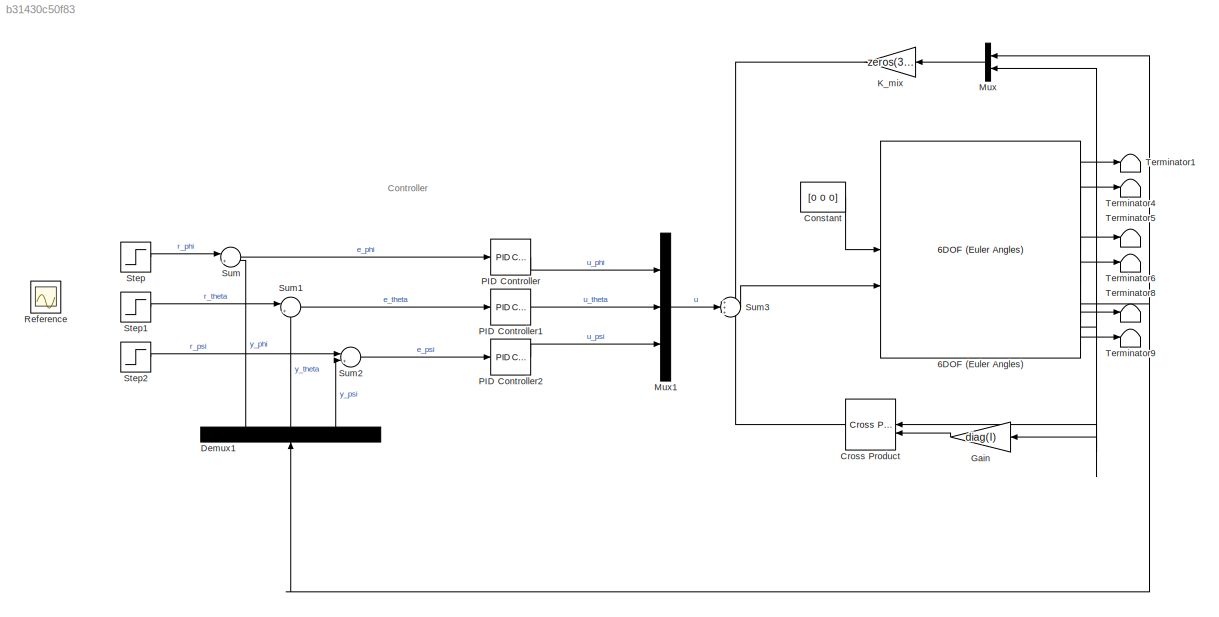
MODEL slx_b31430c50f83
KIND model
CONFIG AbsTol = auto
CONFIG EnableMultiTasking = off
CONFIG FixedStep = auto
CONFIG MaxStep = auto
CONFIG MinStep = auto
CONFIG RelTol = 1e-3
CONFIG SampleTimeConstraint = Unconstrained
CONFIG SolverName = ode45
CONFIG StartTime = 0.0
CONFIG StopTime = 10.0
BLOCK [Reference] 6DOF (Euler Angles)  REF=shared6dof/6DOF (Euler Angles)
  LibrarySourceBlock = aerolib6dof2/6DOF (Euler Angles)
  SourceBlock = shared6dof/6DOF (Euler Angles)
  SourceType = 6DOF EoM (Body Axis)
BLOCK [Constant] Constant
  Value = [0 0 0]
BLOCK [Reference] Cross Product  REF=matrix_library/Cross Product
  LibrarySourceBlock = simulink/Matrix\nOperations/Cross Product
  SourceBlock = matrix_library/Cross Product
  SourceType = CrossProduct
BLOCK [Demux] Demux1
  NameLocation = right
  Outputs = 3
BLOCK [Gain] Gain
  Gain = diag(I)
BLOCK [Gain] K_mix
  Gain = zeros(3,6)
  Multiplication = Matrix(K*u)
BLOCK [Mux] Mux
  DisplayOption = bar
  Inputs = 2
BLOCK [Mux] Mux1
  DisplayOption = bar
  Inputs = 3
BLOCK [Reference] PID Controller  REF=slpidlib/PID Controller
  LibrarySourceBlock = simulink/Continuous/PID Controller
  SourceBlock = slpidlib/PID Controller
  SourceType = PID 1dof
BLOCK [Reference] PID Controller1  REF=slpidlib/PID Controller
  LibrarySourceBlock = simulink/Continuous/PID Controller
  SourceBlock = slpidlib/PID Controller
  SourceType = PID 1dof
BLOCK [Reference] PID Controller2  REF=slpidlib/PID Controller
  LibrarySourceBlock = simulink/Continuous/PID Controller
  SourceBlock = slpidlib/PID Controller
  SourceType = PID 1dof
BLOCK [Scope] Reference
  Floating = off
  IOType = viewer
  NumInputPorts = 1
  ScopeSpecificationString = C++SS(StrPVP('ActiveDisplayYMinimum','-0.125'),StrPVP('ActiveDisplayYMaximum','1.125'),StrPVP('LimitDataPoints','on'),StrPVP('DataFormat','Array'),StrPVP('Decimation','1'),StrPVP('BlockParamSampleInput','off'))
BLOCK [Step] Step
  SampleTime = 0
BLOCK [Step] Step1
  SampleTime = 0
BLOCK [Step] Step2
  SampleTime = 0
BLOCK [Sum] Sum
  Inputs = |+-
BLOCK [Sum] Sum1
  Inputs = |+-
BLOCK [Sum] Sum2
  Inputs = |+-
BLOCK [Sum] Sum3
  Inputs = +++
BLOCK [Terminator] Terminator1
BLOCK [Terminator] Terminator4
BLOCK [Terminator] Terminator5
BLOCK [Terminator] Terminator6
BLOCK [Terminator] Terminator8
BLOCK [Terminator] Terminator9
ANNOTATION (root): Controller
LINE 6DOF (Euler Angles):1 -> Terminator1:1
LINE 6DOF (Euler Angles):2 -> Terminator4:1
NET 6DOF (Euler Angles):3 -> Demux1:1, Mux:1
LINE 6DOF (Euler Angles):4 -> Terminator5:1
LINE 6DOF (Euler Angles):5 -> Terminator6:1
NET 6DOF (Euler Angles):6 -> Cross Product:1, Gain:1, Mux:2
LINE 6DOF (Euler Angles):7 -> Terminator8:1
LINE 6DOF (Euler Angles):8 -> Terminator9:1
LINE Constant:1 -> 6DOF (Euler Angles):1
LINE Cross Product:1 -> Sum3:3
LINE Demux1:1 -> Sum:2
LINE Demux1:2 -> Sum1:2
LINE Demux1:3 -> Sum2:2
LINE Gain:1 -> Cross Product:2
LINE K_mix:1 -> Sum3:1
LINE Mux1:1 -> Sum3:2
LINE Mux:1 -> K_mix:1
LINE PID Controller1:1 -> Mux1:2
LINE PID Controller2:1 -> Mux1:3
LINE PID Controller:1 -> Mux1:1
LINE Step1:1 -> Sum1:1
LINE Step2:1 -> Sum2:1
LINE Step:1 -> Sum:1
LINE Sum1:1 -> PID Controller1:1
LINE Sum2:1 -> PID Controller2:1
LINE Sum3:1 -> 6DOF (Euler Angles):2
LINE Sum:1 -> PID Controller:1
note: NET lines group one-source signal fan-out (src -> all destinations, sorted); 1:1 wires keep LINE
